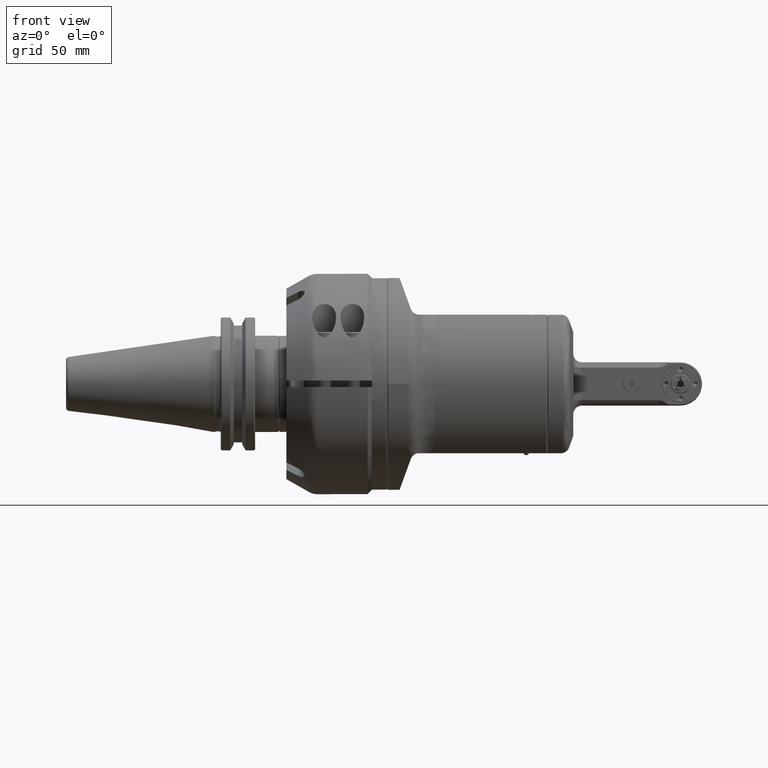
[diagram: clean part render]
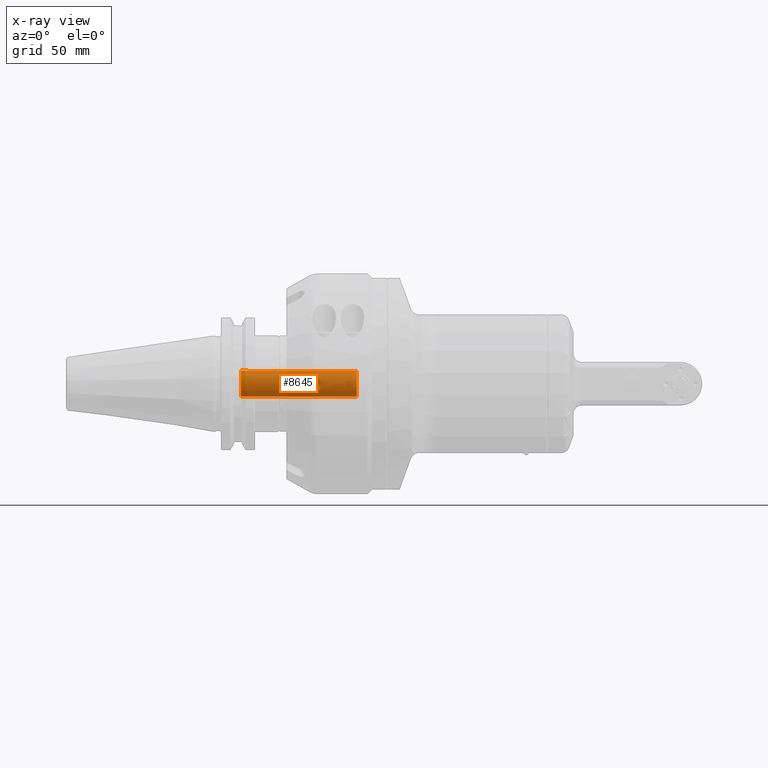
[diagram: x-ray — body ghosted, one internal face saturated and labeled with its STEP entity id]
A machine part, front view, then the same camera in x-ray: the body is ghosted and one INTERNAL B-rep face — a face not visible from any outside direction — is saturated and labeled: STEP entity #8645.
In plain terms, the highlighted cylindrical surface (bore or boss wall) has radius 6 mm, axis along (-1, -0, -0).
Its self-contained STEP definition (entity closure, byte-faithful):
#960=FACE_OUTER_BOUND('',#1505,.T.);
#1505=EDGE_LOOP('',(#7258,#7259,#7260,#7261,#7262,#7263,#7264,#7265,#7266));
#1757=B_SPLINE_CURVE_WITH_KNOTS('',3,(#15397,#15398,#15399,#15400,#15401,
#15402,#15403,#15404,#15405,#15406,#15407,#15408,#15409,#15410,#15411,#15412,
#15413,#15414),.UNSPECIFIED.,.F.,.F.,(4,2,2,2,2,2,2,2,4),(0.62777148553307,
0.783846287513086,0.939921089493101,1.09773203027962,1.25554297106614,1.41335391185266,
1.57116485263918,1.72723965461919,1.88331445659921),.UNSPECIFIED.);
#1758=B_SPLINE_CURVE_WITH_KNOTS('',3,(#15416,#15417,#15418,#15419,#15420,
#15421,#15422,#15423,#15424,#15425,#15426,#15427,#15428,#15429,#15430,#15431,
#15432,#15433,#15434),.UNSPECIFIED.,.F.,.F.,(4,2,2,2,3,2,2,2,4),(1.88331445659921,
2.03938925857923,2.19546406055924,2.35327500134576,2.51108594213228,2.6688968829188,
2.82670782370532,2.98278262568533,3.13885742766535),.UNSPECIFIED.);
#2256=LINE('',#15395,#2834);
#2257=LINE('',#15415,#2835);
#2834=VECTOR('',#11737,6.);
#2835=VECTOR('',#11738,6.);
#3253=CIRCLE('',#9675,6.);
#3255=CIRCLE('',#9678,6.);
#3256=CIRCLE('',#9679,6.);
#3964=VERTEX_POINT('',#15386);
#3966=VERTEX_POINT('',#15391);
#3967=VERTEX_POINT('',#15392);
#3968=VERTEX_POINT('',#15394);
#3969=VERTEX_POINT('',#15396);
#5094=EDGE_CURVE('',#3964,#3964,#3253,.T.);
#5096=EDGE_CURVE('',#3966,#3967,#3255,.T.);
#5097=EDGE_CURVE('',#3966,#3968,#2256,.T.);
#5098=EDGE_CURVE('',#3969,#3968,#1757,.T.);
#5099=EDGE_CURVE('',#3969,#3964,#2257,.T.);
#5100=EDGE_CURVE('',#3968,#3969,#1758,.T.);
#5101=EDGE_CURVE('',#3967,#3966,#3256,.T.);
#7258=ORIENTED_EDGE('',*,*,#5096,.F.);
#7259=ORIENTED_EDGE('',*,*,#5097,.T.);
#7260=ORIENTED_EDGE('',*,*,#5098,.F.);
#7261=ORIENTED_EDGE('',*,*,#5099,.T.);
#7262=ORIENTED_EDGE('',*,*,#5094,.F.);
#7263=ORIENTED_EDGE('',*,*,#5099,.F.);
#7264=ORIENTED_EDGE('',*,*,#5100,.F.);
#7265=ORIENTED_EDGE('',*,*,#5097,.F.);
#7266=ORIENTED_EDGE('',*,*,#5101,.F.);
#7968=CYLINDRICAL_SURFACE('',#9677,6.);
#8645=ADVANCED_FACE('',(#960),#7968,.T.);
#9675=AXIS2_PLACEMENT_3D('',#15387,#11729,#11730);
#9677=AXIS2_PLACEMENT_3D('',#15390,#11733,#11734);
#9678=AXIS2_PLACEMENT_3D('',#15393,#11735,#11736);
#9679=AXIS2_PLACEMENT_3D('',#15435,#11739,#11740);
#11729=DIRECTION('center_axis',(1.,0.,0.));
#11730=DIRECTION('ref_axis',(0.,-1.,0.));
#11733=DIRECTION('center_axis',(-1.,0.,0.));
#11734=DIRECTION('ref_axis',(0.,1.,0.));
#11735=DIRECTION('center_axis',(-1.,0.,0.));
#11736=DIRECTION('ref_axis',(0.,1.,0.));
#11737=DIRECTION('',(1.,0.,0.));
#11738=DIRECTION('',(1.,0.,0.));
#11739=DIRECTION('center_axis',(-1.,0.,0.));
#11740=DIRECTION('ref_axis',(0.,1.,0.));
#15386=CARTESIAN_POINT('',(-26.25,59.,0.));
#15387=CARTESIAN_POINT('Origin',(-26.25,65.,0.));
#15390=CARTESIAN_POINT('Origin',(-2.24999749404,65.,0.));
#15391=CARTESIAN_POINT('',(-79.75,59.,0.));
#15392=CARTESIAN_POINT('',(-79.749999999999,65.,5.999999999999));
#15393=CARTESIAN_POINT('Origin',(-79.75,65.,0.));
#15394=CARTESIAN_POINT('',(-50.75,59.,6.44949795900495E-16));
#15395=CARTESIAN_POINT('',(-2.24999749404,59.,7.34788079488412E-16));
#15396=CARTESIAN_POINT('',(-42.75,59.,0.));
#15397=CARTESIAN_POINT('Ctrl Pts',(-42.75,59.,0.));
#15398=CARTESIAN_POINT('Ctrl Pts',(-42.75,59.,0.520249339933386));
#15399=CARTESIAN_POINT('Ctrl Pts',(-42.8575109371939,59.0732861795248,1.06408494730268));
#15400=CARTESIAN_POINT('Ctrl Pts',(-43.2716353424459,59.336654089527,2.04566028873394));
#15401=CARTESIAN_POINT('Ctrl Pts',(-43.5774602819515,59.5245614597835,2.48431453144388));
#15402=CARTESIAN_POINT('Ctrl Pts',(-44.2695132948257,59.8944793551634,3.17636754431808));
#15403=CARTESIAN_POINT('Ctrl Pts',(-44.7073329820069,60.1051049221371,3.47966275670567));
#15404=CARTESIAN_POINT('Ctrl Pts',(-45.6833640795862,60.4255886215837,3.8913775523215));
#15405=CARTESIAN_POINT('Ctrl Pts',(-46.2239635307116,60.5278640450004,4.));
#15406=CARTESIAN_POINT('Ctrl Pts',(-47.2760364692884,60.5278640450004,4.));
#15407=CARTESIAN_POINT('Ctrl Pts',(-47.8166359204138,60.4255886215837,3.8913775523215));
#15408=CARTESIAN_POINT('Ctrl Pts',(-48.7926670179931,60.1051049221371,3.47966275670567));
#15409=CARTESIAN_POINT('Ctrl Pts',(-49.2304867051743,59.8944793551634,3.17636754431808));
#15410=CARTESIAN_POINT('Ctrl Pts',(-49.9225397180485,59.5245614597835,2.48431453144388));
#15411=CARTESIAN_POINT('Ctrl Pts',(-50.2283646575541,59.336654089527,2.04566028873394));
#15412=CARTESIAN_POINT('Ctrl Pts',(-50.6424890628061,59.0732861795248,1.06408494730268));
#15413=CARTESIAN_POINT('Ctrl Pts',(-50.75,59.,0.520249339933386));
#15414=CARTESIAN_POINT('Ctrl Pts',(-50.75,59.,0.));
#15415=CARTESIAN_POINT('',(-2.24999749404,59.,7.34788079488412E-16));
#15416=CARTESIAN_POINT('Ctrl Pts',(-50.75,59.,6.93889390390723E-16));
#15417=CARTESIAN_POINT('Ctrl Pts',(-50.75,59.,-0.520249339933386));
#15418=CARTESIAN_POINT('Ctrl Pts',(-50.6424890628061,59.0732861795248,-1.06408494730267));
#15419=CARTESIAN_POINT('Ctrl Pts',(-50.2283646575541,59.336654089527,-2.04566028873394));
#15420=CARTESIAN_POINT('Ctrl Pts',(-49.9225397180485,59.5245614597835,-2.48431453144388));
#15421=CARTESIAN_POINT('Ctrl Pts',(-49.2304867051743,59.8944793551634,-3.17636754431808));
#15422=CARTESIAN_POINT('Ctrl Pts',(-48.7926670179931,60.1051049221371,-3.47966275670568));
#15423=CARTESIAN_POINT('Ctrl Pts',(-47.8166359204138,60.4255886215837,-3.8913775523215));
#15424=CARTESIAN_POINT('Ctrl Pts',(-47.2760364692884,60.5278640450004,-4.));
#15425=CARTESIAN_POINT('Ctrl Pts',(-46.75,60.5278640450004,-4.));
#15426=CARTESIAN_POINT('Ctrl Pts',(-46.2239635307116,60.5278640450004,-4.));
#15427=CARTESIAN_POINT('Ctrl Pts',(-45.6833640795862,60.4255886215837,-3.8913775523215));
#15428=CARTESIAN_POINT('Ctrl Pts',(-44.7073329820069,60.1051049221371,-3.47966275670567));
#15429=CARTESIAN_POINT('Ctrl Pts',(-44.2695132948257,59.8944793551634,-3.17636754431808));
#15430=CARTESIAN_POINT('Ctrl Pts',(-43.5774602819515,59.5245614597835,-2.48431453144388));
#15431=CARTESIAN_POINT('Ctrl Pts',(-43.2716353424459,59.336654089527,-2.04566028873394));
#15432=CARTESIAN_POINT('Ctrl Pts',(-42.8575109371939,59.0732861795248,-1.06408494730267));
#15433=CARTESIAN_POINT('Ctrl Pts',(-42.75,59.,-0.520249339933385));
#15434=CARTESIAN_POINT('Ctrl Pts',(-42.75,59.,1.38777878078145E-16));
#15435=CARTESIAN_POINT('Origin',(-79.75,65.,0.));